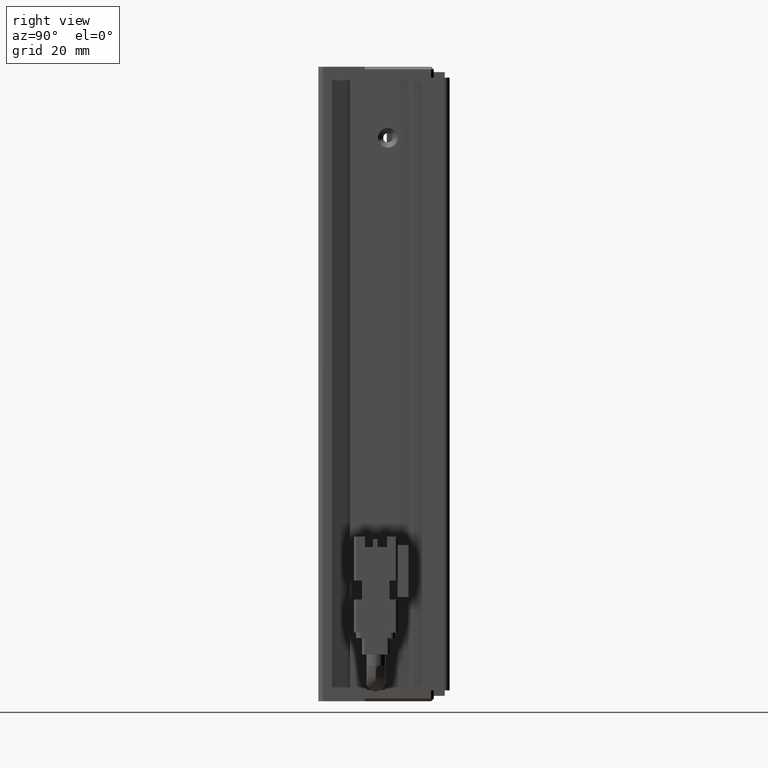
[diagram: clean part render]
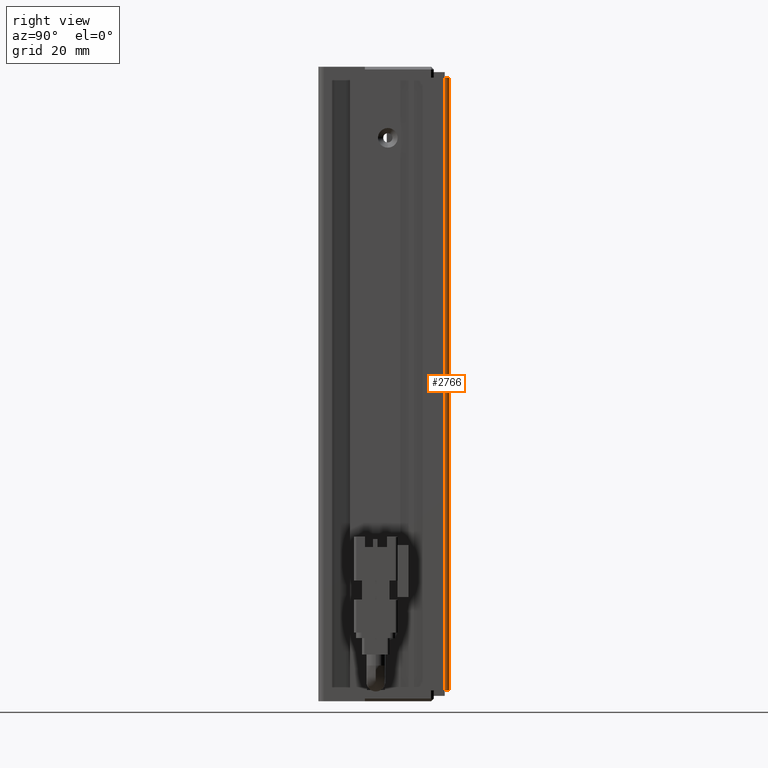
[diagram: same view with one face highlighted and labeled with its STEP entity id]
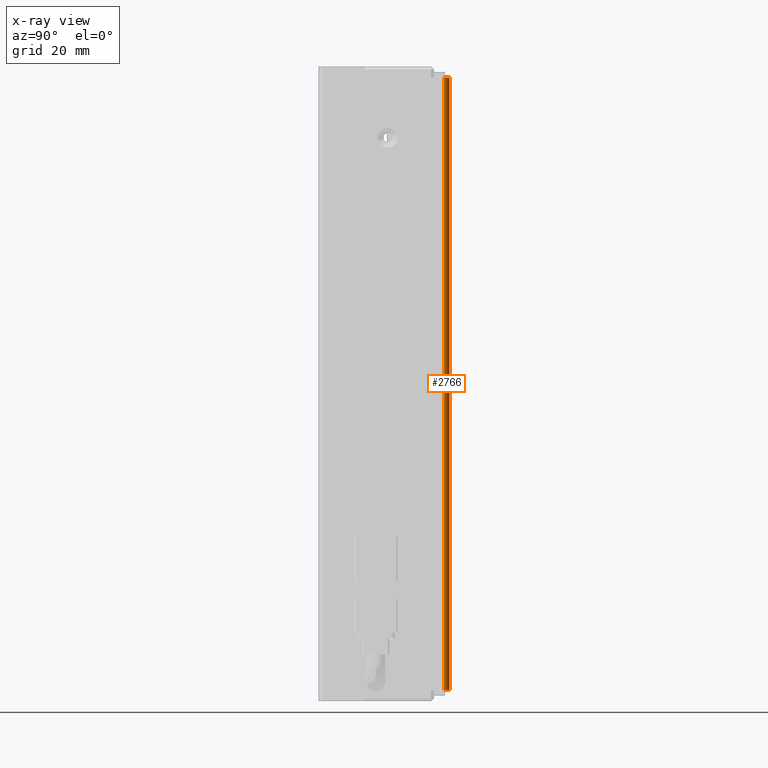
[diagram: x-ray of the same camera — body ghosted, the highlighted face saturated]
A machine part, right view. The second image highlights one B-rep face of the part: STEP entity #2766.
The next image is the same camera in x-ray: the body ghosted, the highlighted face saturated — about 0% of this face is hidden behind the body in this view.
In plain terms, the highlighted cylindrical surface (edge-blend (fillet) strip) has radius 1 mm, axis along (-0, -0, -1).
Its self-contained STEP definition (entity closure, byte-faithful):
#1528 = ORIENTED_EDGE ( 'NONE', *, *, #28738, .T. ) ;
#2766 = ADVANCED_FACE ( 'NONE', ( #41271 ), #22847, .T. ) ;
#3503 = VECTOR ( 'NONE', #54277, 1000.000000000000000 ) ;
#4286 = EDGE_CURVE ( 'NONE', #30987, #17831, #49566, .T. ) ;
#4755 = LINE ( 'NONE', #35933, #53724 ) ;
#7984 = CARTESIAN_POINT ( 'NONE',  ( 57.42537974683541800, 33.99073232304837700, -171.0000000000000000 ) ) ;
#13527 = CARTESIAN_POINT ( 'NONE',  ( 57.42537974683541800, 34.99073232304837700, -59.00000000000000000 ) ) ;
#15497 = CARTESIAN_POINT ( 'NONE',  ( 58.42537974683542500, 33.99073232304837700, -59.00000000000000000 ) ) ;
#15849 = ORIENTED_EDGE ( 'NONE', *, *, #4286, .T. ) ;
#17533 = EDGE_CURVE ( 'NONE', #29839, #42473, #30073, .T. ) ;
#17831 = VERTEX_POINT ( 'NONE', #15497 ) ;
#18074 = CARTESIAN_POINT ( 'NONE',  ( 57.42537974683541800, 34.99073232304837700, -171.0000000000000000 ) ) ;
#20015 = DIRECTION ( 'NONE',  ( -1.000000000000000000, 0.0000000000000000000, 0.0000000000000000000 ) ) ;
#20742 = CARTESIAN_POINT ( 'NONE',  ( 57.42537974683541800, 33.99073232304837700, -59.00000000000000000 ) ) ;
#22847 = CYLINDRICAL_SURFACE ( 'NONE', #54705, 1.000000000000000900 ) ;
#24387 = AXIS2_PLACEMENT_3D ( 'NONE', #20742, #45843, #20015 ) ;
#24912 = CARTESIAN_POINT ( 'NONE',  ( 58.42537974683542500, 33.99073232304837700, -57.00000000000000000 ) ) ;
#24998 = DIRECTION ( 'NONE',  ( 0.0000000000000000000, 0.0000000000000000000, 1.000000000000000000 ) ) ;
#25597 = EDGE_CURVE ( 'NONE', #17831, #29839, #51801, .T. ) ;
#26938 = CARTESIAN_POINT ( 'NONE',  ( 57.42537974683541800, 33.99073232304837700, -57.00000000000000000 ) ) ;
#28738 = EDGE_CURVE ( 'NONE', #42473, #30987, #4755, .T. ) ;
#29839 = VERTEX_POINT ( 'NONE', #41631 ) ;
#30073 = CIRCLE ( 'NONE', #52305, 1.000000000000000900 ) ;
#30987 = VERTEX_POINT ( 'NONE', #13527 ) ;
#31372 = DIRECTION ( 'NONE',  ( -0.0000000000000000000, -0.0000000000000000000, -1.000000000000000000 ) ) ;
#34300 = ORIENTED_EDGE ( 'NONE', *, *, #17533, .T. ) ;
#35933 = CARTESIAN_POINT ( 'NONE',  ( 57.42537974683541100, 34.99073232304837700, -57.00000000000000000 ) ) ;
#40313 = ORIENTED_EDGE ( 'NONE', *, *, #25597, .T. ) ;
#41271 = FACE_OUTER_BOUND ( 'NONE', #45261, .T. ) ;
#41631 = CARTESIAN_POINT ( 'NONE',  ( 58.42537974683542500, 33.99073232304837700, -171.0000000000000000 ) ) ;
#42473 = VERTEX_POINT ( 'NONE', #18074 ) ;
#45261 = EDGE_LOOP ( 'NONE', ( #40313, #34300, #1528, #15849 ) ) ;
#45843 = DIRECTION ( 'NONE',  ( -0.0000000000000000000, -0.0000000000000000000, -1.000000000000000000 ) ) ;
#47970 = DIRECTION ( 'NONE',  ( -1.000000000000000000, 0.0000000000000000000, 0.0000000000000000000 ) ) ;
#49566 = CIRCLE ( 'NONE', #24387, 1.000000000000000900 ) ;
#51042 = DIRECTION ( 'NONE',  ( -1.000000000000000000, 0.0000000000000000000, 0.0000000000000000000 ) ) ;
#51801 = LINE ( 'NONE', #24912, #3503 ) ;
#52305 = AXIS2_PLACEMENT_3D ( 'NONE', #7984, #24998, #51042 ) ;
#52731 = DIRECTION ( 'NONE',  ( 0.0000000000000000000, 0.0000000000000000000, 1.000000000000000000 ) ) ;
#53724 = VECTOR ( 'NONE', #52731, 1000.000000000000000 ) ;
#54277 = DIRECTION ( 'NONE',  ( -0.0000000000000000000, -0.0000000000000000000, -1.000000000000000000 ) ) ;
#54705 = AXIS2_PLACEMENT_3D ( 'NONE', #26938, #31372, #47970 ) ;